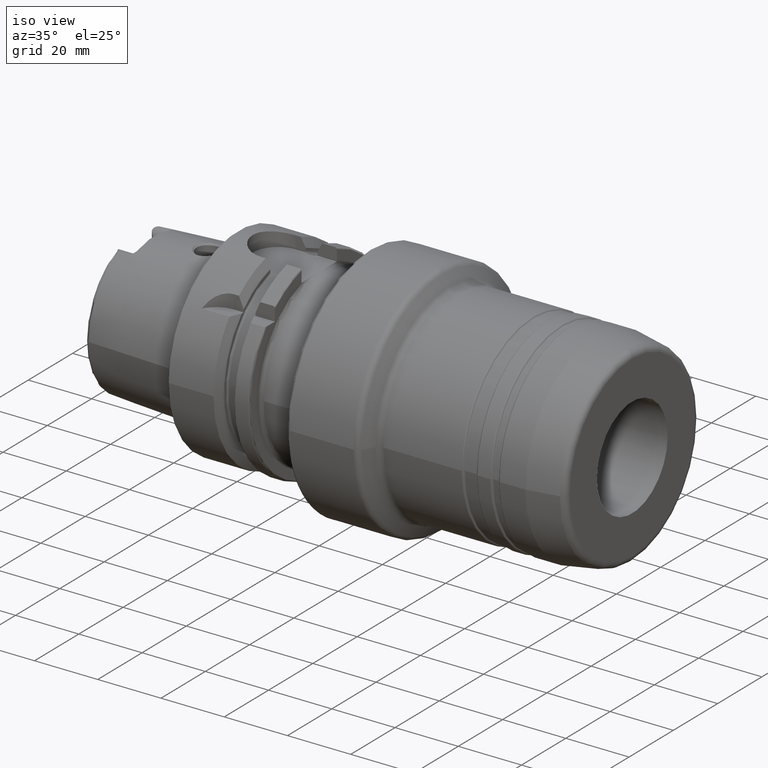
[diagram: clean part render]
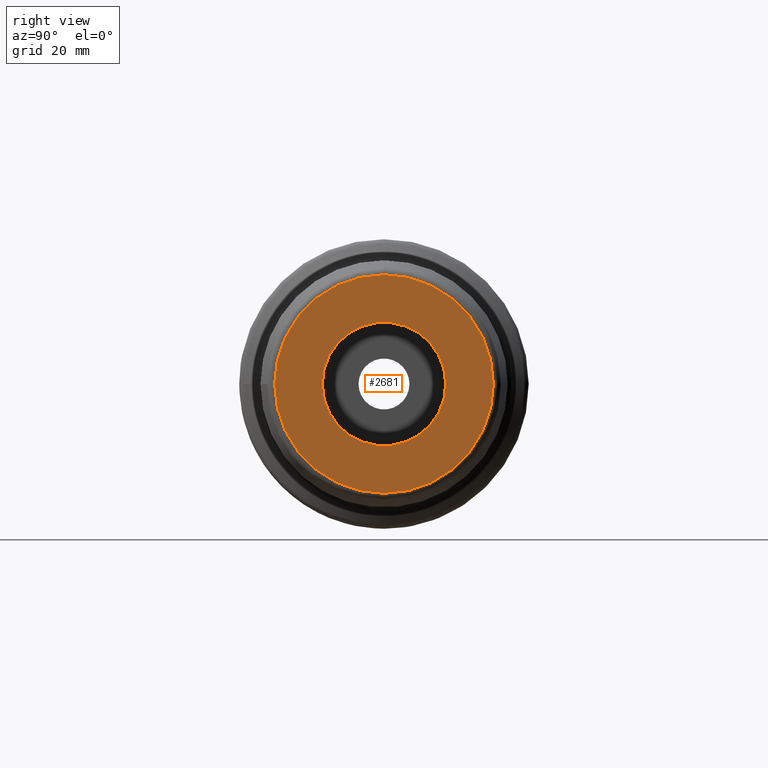
[diagram: tour spotlight — one face highlighted and labeled with its STEP entity id]
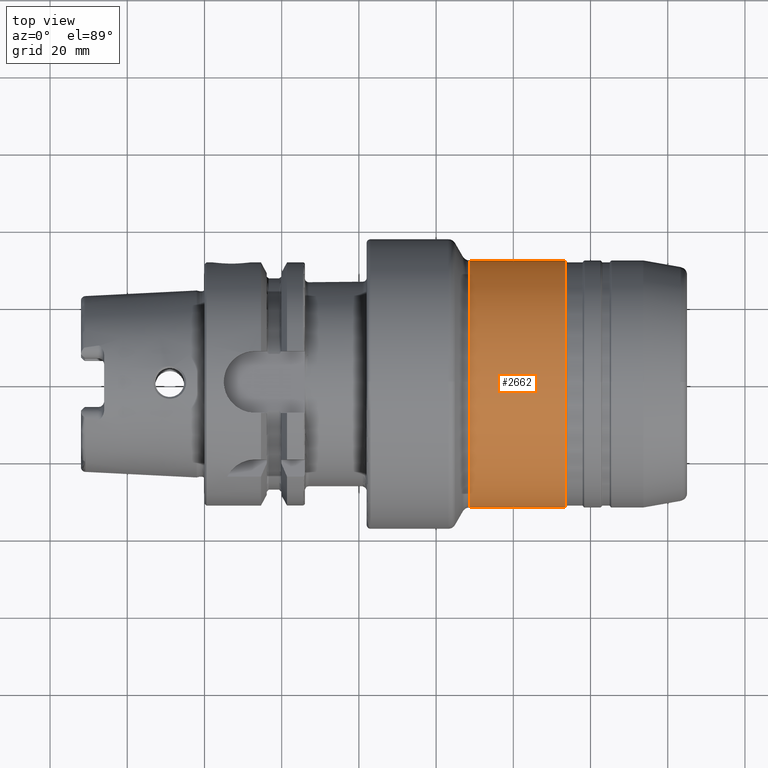
[diagram: tour spotlight — one face highlighted and labeled with its STEP entity id]
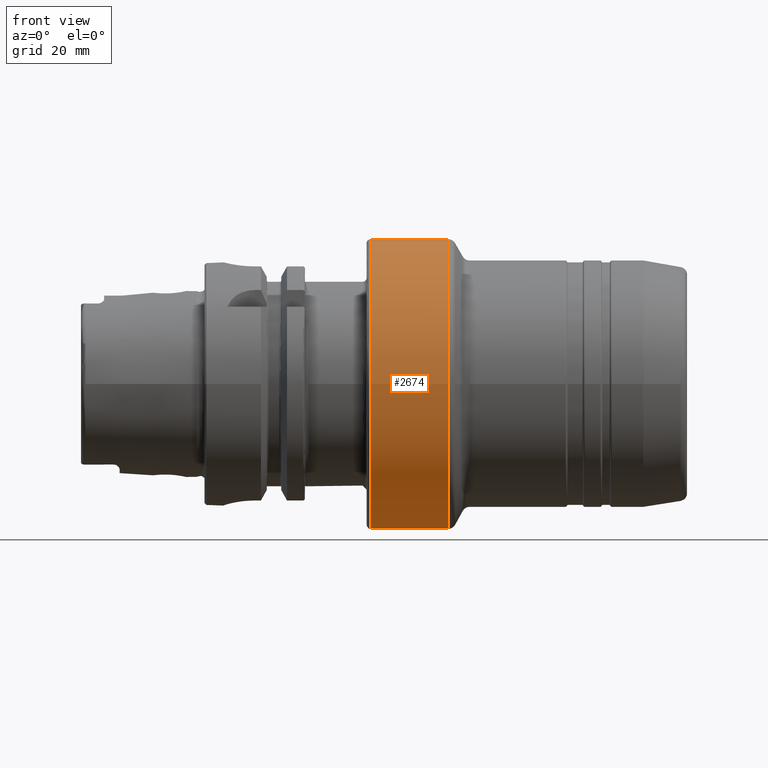
[diagram: tour spotlight — one face highlighted and labeled with its STEP entity id]
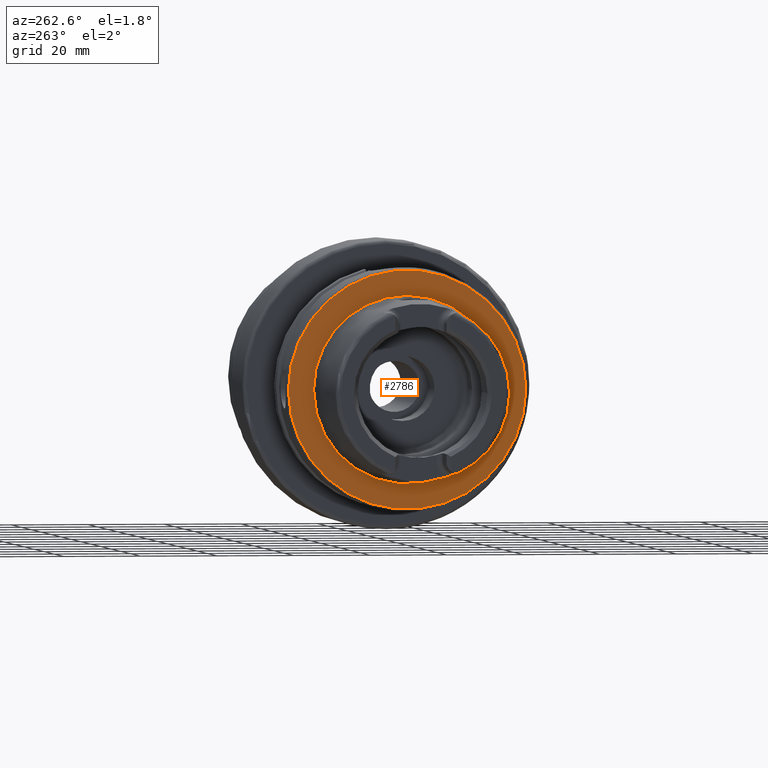
[diagram: tour spotlight — one face highlighted and labeled with its STEP entity id]
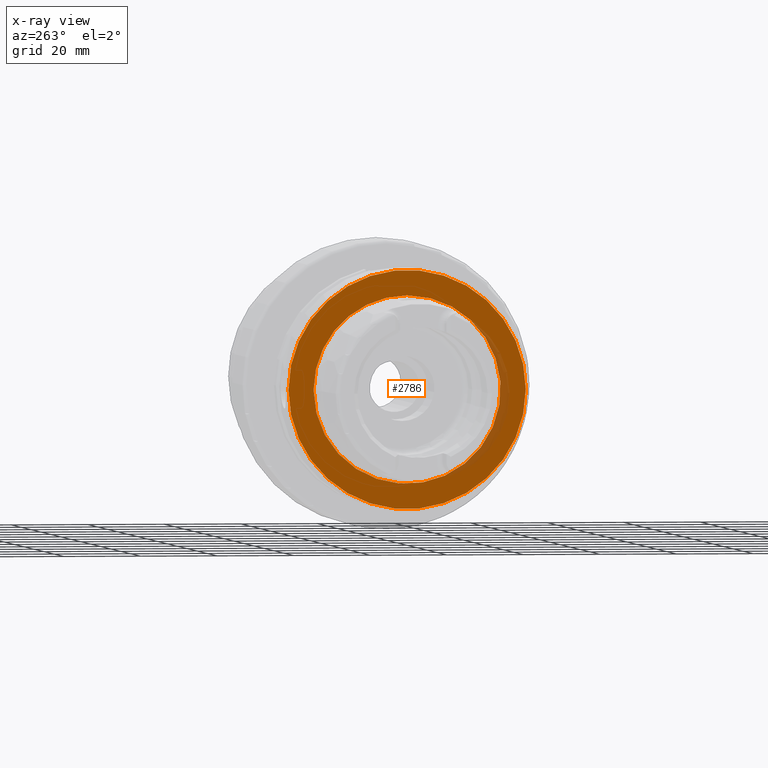
[diagram: x-ray of the same camera — body ghosted, this tour face saturated]
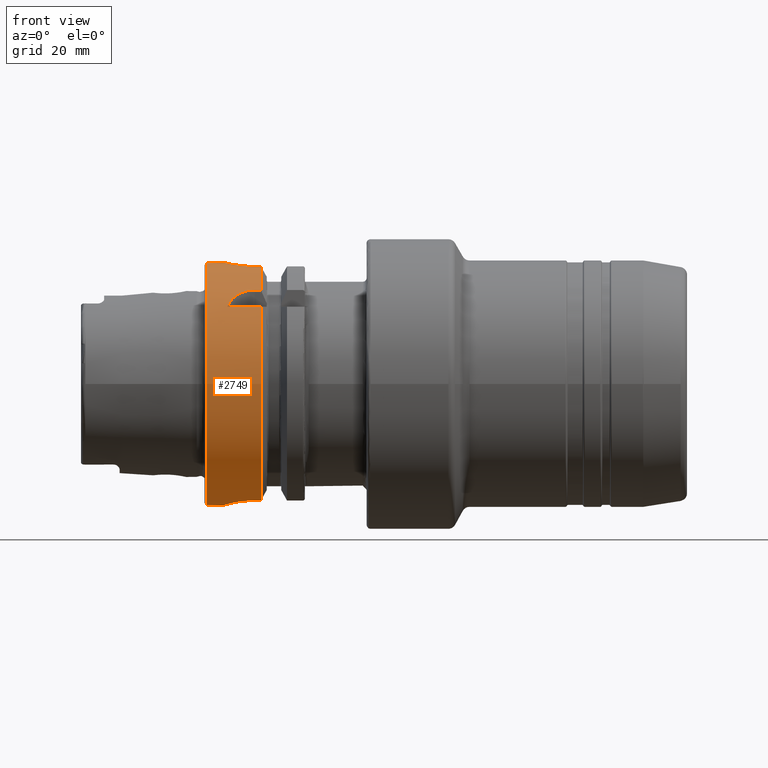
[diagram: tour spotlight — one face highlighted and labeled with its STEP entity id]
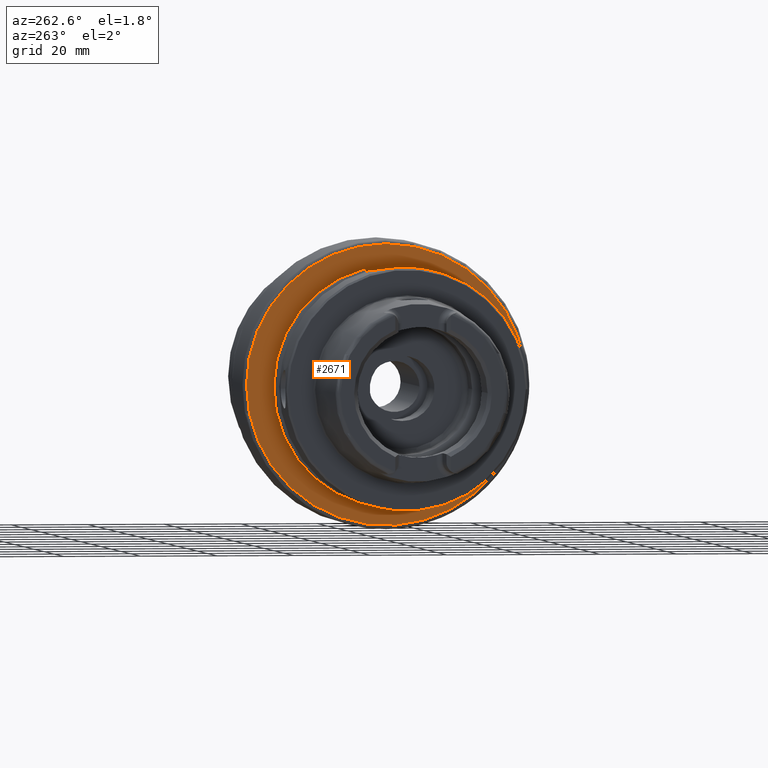
[diagram: tour spotlight — one face highlighted and labeled with its STEP entity id]
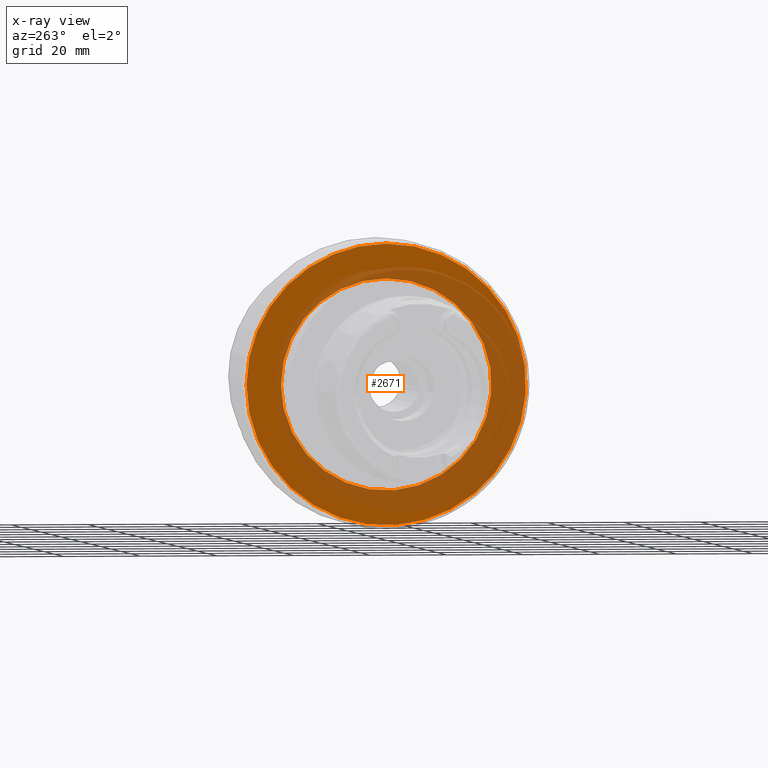
[diagram: x-ray of the same camera — body ghosted, this tour face saturated]
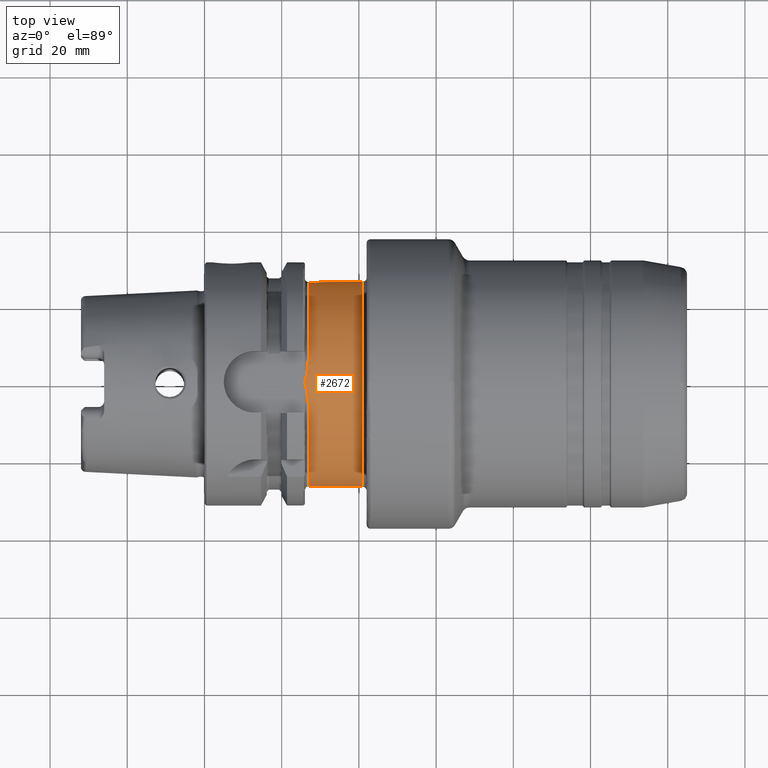
[diagram: tour spotlight — one face highlighted and labeled with its STEP entity id]
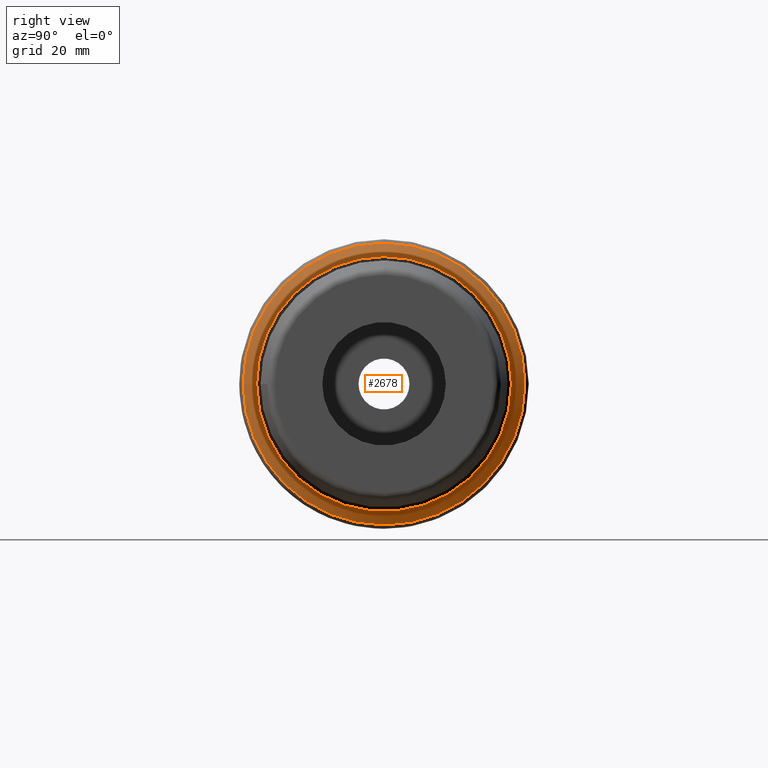
[diagram: tour spotlight — one face highlighted and labeled with its STEP entity id]
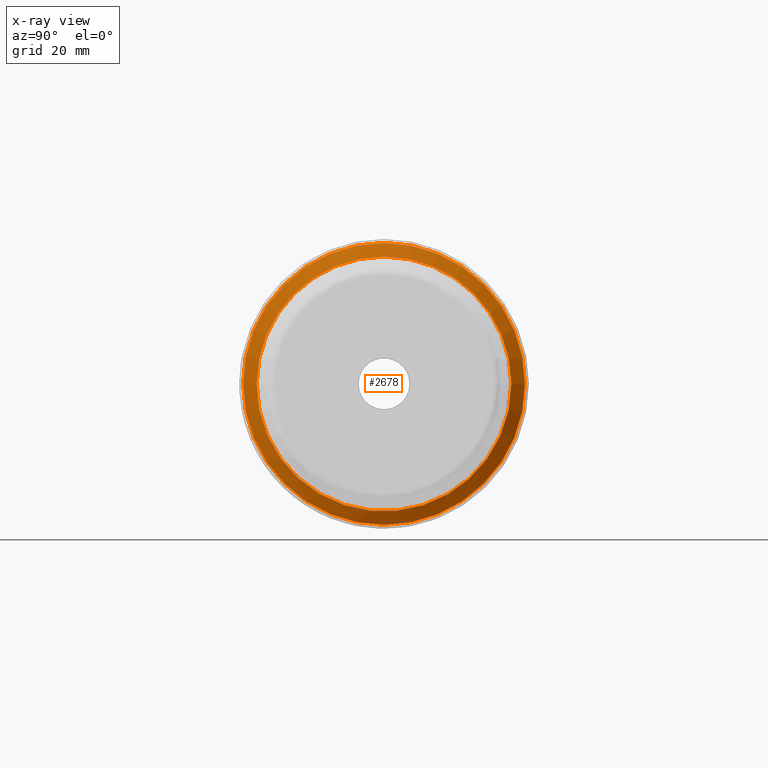
[diagram: x-ray of the same camera — body ghosted, this tour face saturated]
A machine part: a face-by-face anatomy tour. The part has 142 B-rep faces; the first image is the clean iso view, then the 8 largest visible faces are spotlighted one at a time (largest first), each with its STEP entity span.

Face 1 — right view, entity #2681. In plain terms, the highlighted planar face has unit normal (1, 0, 0).
Definition (entity closure, byte-faithful):
#38=FACE_BOUND('',#635,.T.);
#49=PLANE('',#2945);
#491=FACE_OUTER_BOUND('',#634,.T.);
#634=EDGE_LOOP('',(#1980,#1981));
#635=EDGE_LOOP('',(#1982,#1983));
#853=CIRCLE('',#2942,28.3218007376454);
#855=CIRCLE('',#2944,28.3218007376454);
#856=CIRCLE('',#2946,16.);
#857=CIRCLE('',#2947,16.);
#1082=VERTEX_POINT('',#4503);
#1083=VERTEX_POINT('',#4504);
#1084=VERTEX_POINT('',#4509);
#1085=VERTEX_POINT('',#4510);
#1419=EDGE_CURVE('',#1082,#1083,#853,.T.);
#1421=EDGE_CURVE('',#1083,#1082,#855,.T.);
#1422=EDGE_CURVE('',#1084,#1085,#856,.T.);
#1423=EDGE_CURVE('',#1085,#1084,#857,.T.);
#1980=ORIENTED_EDGE('',*,*,#1419,.F.);
#1981=ORIENTED_EDGE('',*,*,#1421,.F.);
#1982=ORIENTED_EDGE('',*,*,#1422,.F.);
#1983=ORIENTED_EDGE('',*,*,#1423,.F.);
#2681=ADVANCED_FACE('',(#491,#38),#49,.T.);
#2942=AXIS2_PLACEMENT_3D('',#4505,#3476,#3477);
#2944=AXIS2_PLACEMENT_3D('',#4507,#3480,#3481);
#2945=AXIS2_PLACEMENT_3D('',#4508,#3482,#3483);
#2946=AXIS2_PLACEMENT_3D('',#4511,#3484,#3485);
#2947=AXIS2_PLACEMENT_3D('',#4512,#3486,#3487);
#3476=DIRECTION('center_axis',(-1.,0.,0.));
#3477=DIRECTION('ref_axis',(0.,-1.,1.83697019872103E-16));
#3480=DIRECTION('center_axis',(-1.,0.,0.));
#3481=DIRECTION('ref_axis',(0.,-1.,1.83697019872103E-16));
#3482=DIRECTION('center_axis',(1.,0.,0.));
#3483=DIRECTION('ref_axis',(0.,0.,-1.));
#3484=DIRECTION('center_axis',(1.,0.,0.));
#3485=DIRECTION('ref_axis',(0.,0.,-1.));
#3486=DIRECTION('center_axis',(1.,0.,0.));
#3487=DIRECTION('ref_axis',(0.,0.,-1.));
#4503=CARTESIAN_POINT('',(125.,28.3218007376454,-8.67105065486166E-15));
#4504=CARTESIAN_POINT('',(125.,-3.46842026194466E-15,28.3218007376454));
#4505=CARTESIAN_POINT('Origin',(125.,0.,0.));
#4507=CARTESIAN_POINT('Origin',(125.,0.,0.));
#4508=CARTESIAN_POINT('Origin',(125.,16.,0.));
#4509=CARTESIAN_POINT('',(125.,16.,0.));
#4510=CARTESIAN_POINT('',(125.,-16.,-1.95943487863577E-15));
#4511=CARTESIAN_POINT('Origin',(125.,0.,0.));
#4512=CARTESIAN_POINT('Origin',(125.,0.,0.));

Face 2 — top view, entity #2662. In plain terms, the highlighted cylindrical surface (bore or boss wall) has radius 32 mm, axis along (1, 0, 0).
Definition (entity closure, byte-faithful):
#184=LINE('',#4193,#305);
#305=VECTOR('',#3345,32.);
#422=CYLINDRICAL_SURFACE('',#2883,32.);
#472=FACE_OUTER_BOUND('',#614,.T.);
#614=EDGE_LOOP('',(#1857,#1858,#1859,#1860,#1861,#1862,#1863,#1864));
#806=CIRCLE('',#2880,32.);
#807=CIRCLE('',#2881,32.);
#808=CIRCLE('',#2882,32.);
#809=CIRCLE('',#2884,32.);
#810=CIRCLE('',#2885,32.);
#811=CIRCLE('',#2886,32.);
#1033=VERTEX_POINT('',#4184);
#1034=VERTEX_POINT('',#4186);
#1035=VERTEX_POINT('',#4188);
#1036=VERTEX_POINT('',#4192);
#1037=VERTEX_POINT('',#4194);
#1038=VERTEX_POINT('',#4196);
#1353=EDGE_CURVE('',#1033,#1034,#806,.T.);
#1354=EDGE_CURVE('',#1034,#1035,#807,.T.);
#1355=EDGE_CURVE('',#1035,#1033,#808,.T.);
#1356=EDGE_CURVE('',#1034,#1036,#184,.T.);
#1357=EDGE_CURVE('',#1037,#1036,#809,.T.);
#1358=EDGE_CURVE('',#1038,#1037,#810,.T.);
#1359=EDGE_CURVE('',#1036,#1038,#811,.T.);
#1857=ORIENTED_EDGE('',*,*,#1355,.F.);
#1858=ORIENTED_EDGE('',*,*,#1354,.F.);
#1859=ORIENTED_EDGE('',*,*,#1356,.T.);
#1860=ORIENTED_EDGE('',*,*,#1357,.F.);
#1861=ORIENTED_EDGE('',*,*,#1358,.F.);
#1862=ORIENTED_EDGE('',*,*,#1359,.F.);
#1863=ORIENTED_EDGE('',*,*,#1356,.F.);
#1864=ORIENTED_EDGE('',*,*,#1353,.F.);
#2662=ADVANCED_FACE('',(#472),#422,.T.);
#2880=AXIS2_PLACEMENT_3D('',#4187,#3337,#3338);
#2881=AXIS2_PLACEMENT_3D('',#4189,#3339,#3340);
#2882=AXIS2_PLACEMENT_3D('',#4190,#3341,#3342);
#2883=AXIS2_PLACEMENT_3D('',#4191,#3343,#3344);
#2884=AXIS2_PLACEMENT_3D('',#4195,#3346,#3347);
#2885=AXIS2_PLACEMENT_3D('',#4197,#3348,#3349);
#2886=AXIS2_PLACEMENT_3D('',#4198,#3350,#3351);
#3337=DIRECTION('center_axis',(1.,0.,0.));
#3338=DIRECTION('ref_axis',(0.,-1.,1.83697019872103E-16));
#3339=DIRECTION('center_axis',(1.,0.,0.));
#3340=DIRECTION('ref_axis',(0.,-1.,1.83697019872103E-16));
#3341=DIRECTION('center_axis',(1.,0.,0.));
#3342=DIRECTION('ref_axis',(0.,-1.,1.83697019872103E-16));
#3343=DIRECTION('center_axis',(1.,0.,0.));
#3344=DIRECTION('ref_axis',(0.,1.,0.));
#3345=DIRECTION('',(-1.,0.,0.));
#3346=DIRECTION('center_axis',(-1.,0.,0.));
#3347=DIRECTION('ref_axis',(0.,-1.,1.83697019872103E-16));
#3348=DIRECTION('center_axis',(-1.,0.,0.));
#3349=DIRECTION('ref_axis',(0.,-1.,1.83697019872103E-16));
#3350=DIRECTION('center_axis',(-1.,0.,0.));
#3351=DIRECTION('ref_axis',(0.,-1.,1.83697019872103E-16));
#4184=CARTESIAN_POINT('',(93.4803847577293,-3.91886975727153E-15,32.));
#4186=CARTESIAN_POINT('',(93.4803847577293,-32.,-3.91886975727153E-15));
#4187=CARTESIAN_POINT('Origin',(93.4803847577293,0.,0.));
#4188=CARTESIAN_POINT('',(93.4803847577293,32.,-1.95943487863576E-15));
#4189=CARTESIAN_POINT('Origin',(93.4803847577293,0.,0.));
#4190=CARTESIAN_POINT('Origin',(93.4803847577293,0.,0.));
#4191=CARTESIAN_POINT('Origin',(80.6056624327026,0.,0.));
#4192=CARTESIAN_POINT('',(68.6547005383792,-32.,-3.91886975727153E-15));
#4193=CARTESIAN_POINT('',(80.6056624327026,-32.,-3.91886975727153E-15));
#4194=CARTESIAN_POINT('',(68.6547005383792,32.,-9.79717439317883E-15));
#4195=CARTESIAN_POINT('Origin',(68.6547005383792,0.,0.));
#4196=CARTESIAN_POINT('',(68.6547005383792,-3.91886975727153E-15,32.));
#4197=CARTESIAN_POINT('Origin',(68.6547005383792,0.,0.));
#4198=CARTESIAN_POINT('Origin',(68.6547005383792,0.,0.));

Face 3 — front view, entity #2674. In plain terms, the highlighted cylindrical surface (bore or boss wall) has radius 37.5 mm, axis along (1, 0, 0).
Definition (entity closure, byte-faithful):
#196=LINE('',#4466,#317);
#317=VECTOR('',#3429,37.5);
#424=CYLINDRICAL_SURFACE('',#2917,37.5);
#484=FACE_OUTER_BOUND('',#627,.T.);
#627=EDGE_LOOP('',(#1925,#1926,#1927,#1928,#1929,#1930,#1931,#1932));
#831=CIRCLE('',#2913,37.5);
#832=CIRCLE('',#2914,37.5);
#834=CIRCLE('',#2916,37.5);
#835=CIRCLE('',#2918,37.5);
#836=CIRCLE('',#2919,37.5);
#837=CIRCLE('',#2920,37.5);
#1064=VERTEX_POINT('',#4453);
#1065=VERTEX_POINT('',#4454);
#1066=VERTEX_POINT('',#4456);
#1067=VERTEX_POINT('',#4461);
#1068=VERTEX_POINT('',#4462);
#1069=VERTEX_POINT('',#4464);
#1394=EDGE_CURVE('',#1064,#1065,#831,.T.);
#1395=EDGE_CURVE('',#1065,#1066,#832,.T.);
#1397=EDGE_CURVE('',#1066,#1064,#834,.T.);
#1398=EDGE_CURVE('',#1067,#1068,#835,.T.);
#1399=EDGE_CURVE('',#1069,#1067,#836,.T.);
#1400=EDGE_CURVE('',#1069,#1065,#196,.T.);
#1401=EDGE_CURVE('',#1068,#1069,#837,.T.);
#1925=ORIENTED_EDGE('',*,*,#1398,.F.);
#1926=ORIENTED_EDGE('',*,*,#1399,.F.);
#1927=ORIENTED_EDGE('',*,*,#1400,.T.);
#1928=ORIENTED_EDGE('',*,*,#1394,.F.);
#1929=ORIENTED_EDGE('',*,*,#1397,.F.);
#1930=ORIENTED_EDGE('',*,*,#1395,.F.);
#1931=ORIENTED_EDGE('',*,*,#1400,.F.);
#1932=ORIENTED_EDGE('',*,*,#1401,.F.);
#2674=ADVANCED_FACE('',(#484),#424,.T.);
#2913=AXIS2_PLACEMENT_3D('',#4455,#3415,#3416);
#2914=AXIS2_PLACEMENT_3D('',#4457,#3417,#3418);
#2916=AXIS2_PLACEMENT_3D('',#4459,#3421,#3422);
#2917=AXIS2_PLACEMENT_3D('',#4460,#3423,#3424);
#2918=AXIS2_PLACEMENT_3D('',#4463,#3425,#3426);
#2919=AXIS2_PLACEMENT_3D('',#4465,#3427,#3428);
#2920=AXIS2_PLACEMENT_3D('',#4467,#3430,#3431);
#3415=DIRECTION('center_axis',(-1.,0.,0.));
#3416=DIRECTION('ref_axis',(0.,-1.,1.83697019872103E-16));
#3417=DIRECTION('center_axis',(-1.,0.,0.));
#3418=DIRECTION('ref_axis',(0.,-1.,1.83697019872103E-16));
#3421=DIRECTION('center_axis',(-1.,0.,0.));
#3422=DIRECTION('ref_axis',(0.,-1.,1.83697019872103E-16));
#3423=DIRECTION('center_axis',(1.,0.,0.));
#3424=DIRECTION('ref_axis',(0.,1.,0.));
#3425=DIRECTION('center_axis',(1.,0.,0.));
#3426=DIRECTION('ref_axis',(0.,-1.,1.83697019872103E-16));
#3427=DIRECTION('center_axis',(1.,0.,0.));
#3428=DIRECTION('ref_axis',(0.,-1.,1.83697019872103E-16));
#3429=DIRECTION('',(-1.,0.,0.));
#3430=DIRECTION('center_axis',(1.,0.,0.));
#3431=DIRECTION('ref_axis',(0.,-1.,1.83697019872103E-16));
#4453=CARTESIAN_POINT('',(43.,37.5,-1.14810637420064E-14));
#4454=CARTESIAN_POINT('',(43.,-37.5,-4.59242549680258E-15));
#4455=CARTESIAN_POINT('Origin',(43.,0.,0.));
#4456=CARTESIAN_POINT('',(43.,-4.59242549680258E-15,37.5));
#4457=CARTESIAN_POINT('Origin',(43.,0.,0.));
#4459=CARTESIAN_POINT('Origin',(43.,0.,0.));
#4460=CARTESIAN_POINT('Origin',(53.1622867597285,0.,0.));
#4461=CARTESIAN_POINT('',(63.1698729810778,37.5,-2.29621274840129E-15));
#4462=CARTESIAN_POINT('',(63.1698729810778,-4.59242549680258E-15,37.5));
#4463=CARTESIAN_POINT('Origin',(63.1698729810778,0.,0.));
#4464=CARTESIAN_POINT('',(63.1698729810778,-37.5,-4.59242549680258E-15));
#4465=CARTESIAN_POINT('Origin',(63.1698729810778,0.,0.));
#4466=CARTESIAN_POINT('',(53.1622867597285,-37.5,-4.59242549680258E-15));
#4467=CARTESIAN_POINT('Origin',(63.1698729810778,0.,0.));

Face 4 — auxiliary view, entity #2786. An x-ray twin of the same camera follows (body ghosted, this face saturated) — the face is partly hidden behind the body. In plain terms, the highlighted planar face has unit normal (-1, 0, 0).
Definition (entity closure, byte-faithful):
#46=FACE_BOUND('',#748,.T.);
#89=PLANE('',#3179);
#596=FACE_OUTER_BOUND('',#747,.T.);
#747=EDGE_LOOP('',(#2599,#2600));
#748=EDGE_LOOP('',(#2601,#2602));
#981=CIRCLE('',#3177,24.4331325271027);
#982=CIRCLE('',#3178,24.4331325271027);
#983=CIRCLE('',#3180,31.);
#984=CIRCLE('',#3181,31.);
#1285=VERTEX_POINT('',#5949);
#1286=VERTEX_POINT('',#5951);
#1287=VERTEX_POINT('',#5955);
#1288=VERTEX_POINT('',#5956);
#1724=EDGE_CURVE('',#1286,#1285,#981,.T.);
#1725=EDGE_CURVE('',#1285,#1286,#982,.T.);
#1726=EDGE_CURVE('',#1287,#1288,#983,.T.);
#1727=EDGE_CURVE('',#1288,#1287,#984,.T.);
#2599=ORIENTED_EDGE('',*,*,#1726,.F.);
#2600=ORIENTED_EDGE('',*,*,#1727,.F.);
#2601=ORIENTED_EDGE('',*,*,#1724,.T.);
#2602=ORIENTED_EDGE('',*,*,#1725,.T.);
#2786=ADVANCED_FACE('',(#596,#46),#89,.T.);
#3177=AXIS2_PLACEMENT_3D('',#5952,#4043,#4044);
#3178=AXIS2_PLACEMENT_3D('',#5953,#4045,#4046);
#3179=AXIS2_PLACEMENT_3D('',#5954,#4047,#4048);
#3180=AXIS2_PLACEMENT_3D('',#5957,#4049,#4050);
#3181=AXIS2_PLACEMENT_3D('',#5958,#4051,#4052);
#4043=DIRECTION('center_axis',(1.,0.,0.));
#4044=DIRECTION('ref_axis',(0.,0.,-1.));
#4045=DIRECTION('center_axis',(1.,0.,0.));
#4046=DIRECTION('ref_axis',(0.,0.,-1.));
#4047=DIRECTION('center_axis',(-1.,0.,0.));
#4048=DIRECTION('ref_axis',(0.,0.,1.));
#4049=DIRECTION('center_axis',(1.,0.,0.));
#4050=DIRECTION('ref_axis',(0.,0.,-1.));
#4051=DIRECTION('center_axis',(1.,0.,0.));
#4052=DIRECTION('ref_axis',(0.,0.,-1.));
#5949=CARTESIAN_POINT('',(0.,-2.99219575424594E-15,24.4331325271027));
#5951=CARTESIAN_POINT('',(0.,24.4331325271027,0.));
#5952=CARTESIAN_POINT('Origin',(0.,0.,0.));
#5953=CARTESIAN_POINT('Origin',(0.,0.,0.));
#5954=CARTESIAN_POINT('Origin',(0.,31.,0.));
#5955=CARTESIAN_POINT('',(0.,31.,0.));
#5956=CARTESIAN_POINT('',(-1.04083408558608E-15,-31.,-3.7964050773568E-15));
#5957=CARTESIAN_POINT('Origin',(0.,0.,0.));
#5958=CARTESIAN_POINT('Origin',(0.,0.,0.));

Face 5 — front view, entity #2749. In plain terms, the highlighted cylindrical surface (bore or boss wall) has radius 31.5 mm, axis along (1, 0, 0).
Definition (entity closure, byte-faithful):
#43=FACE_BOUND('',#708,.T.);
#119=B_SPLINE_CURVE_WITH_KNOTS('',3,(#5265,#5266,#5267,#5268,#5269,#5270,
#5271,#5272,#5273,#5274,#5275,#5276,#5277,#5278,#5279,#5280,#5281,#5282,
#5283,#5284,#5285,#5286,#5287,#5288,#5289,#5290),.UNSPECIFIED.,.F.,.F.,
(4,2,2,2,2,2,2,2,2,2,2,2,4),(0.,0.188688694287611,0.377377388575223,0.56606194688798,
0.754746505200737,0.943431063513494,1.13211562182625,1.32080431611386,1.50949301040147,
1.69818170468909,1.8868703989767,2.07555495728945,2.26423951560221),
 .UNSPECIFIED.);
#120=B_SPLINE_CURVE_WITH_KNOTS('',3,(#5291,#5292,#5293,#5294,#5295,#5296,
#5297,#5298,#5299,#5300),.UNSPECIFIED.,.F.,.F.,(4,2,2,2,4),(2.26423951560221,
2.45292407391497,2.64160863222772,2.83029732651534,3.01898602080295),
 .UNSPECIFIED.);
#123=B_SPLINE_CURVE_WITH_KNOTS('',3,(#5356,#5357,#5358,#5359,#5360,#5361,
#5362,#5363,#5364,#5365,#5366,#5367),.UNSPECIFIED.,.F.,.F.,(4,2,2,2,2,4),
(1.1085154204615,1.31979218709236,1.52798350480179,1.73617482251122,1.90421770126337,
2.07226058001552),.UNSPECIFIED.);
#133=B_SPLINE_CURVE_WITH_KNOTS('',3,(#5536,#5537,#5538,#5539,#5540,#5541,
#5542,#5543,#5544,#5545),.UNSPECIFIED.,.F.,.F.,(4,2,2,2,4),(0.,0.30293011231322,
0.605860224626439,0.90976031392917,1.2136604032319),.UNSPECIFIED.);
#134=B_SPLINE_CURVE_WITH_KNOTS('',3,(#5554,#5555,#5556,#5557,#5558,#5559,
#5560,#5561,#5562,#5563),.UNSPECIFIED.,.F.,.F.,(4,2,2,2,4),(1.20927420824097,
1.5131742975437,1.81707438684643,2.12000449915965,2.42293461147287),
 .UNSPECIFIED.);
#146=B_SPLINE_CURVE_WITH_KNOTS('',3,(#5724,#5725,#5726,#5727,#5728,#5729,
#5730,#5731,#5732,#5733,#5734,#5735,#5736,#5737,#5738,#5739,#5740,#5741),
 .UNSPECIFIED.,.F.,.F.,(4,2,2,2,2,2,2,2,4),(0.,0.302805879979318,0.605611759958635,
0.908372461246501,1.21113316253437,1.51389386382223,1.8166545651101,2.11946044508942,
2.42226632506874),.UNSPECIFIED.);
#237=LINE('',#5331,#358);
#242=LINE('',#5376,#363);
#262=LINE('',#5570,#383);
#263=LINE('',#5573,#384);
#272=LINE('',#5718,#393);
#274=LINE('',#5746,#395);
#278=LINE('',#5756,#399);
#358=VECTOR('',#3678,10.);
#363=VECTOR('',#3689,10.);
#383=VECTOR('',#3761,10.);
#384=VECTOR('',#3764,10.);
#393=VECTOR('',#3831,10.);
#395=VECTOR('',#3839,10.);
#399=VECTOR('',#3853,31.5);
#443=CYLINDRICAL_SURFACE('',#3089,31.5);
#559=FACE_OUTER_BOUND('',#707,.T.);
#707=EDGE_LOOP('',(#2382,#2383,#2384,#2385,#2386,#2387,#2388,#2389,#2390,
#2391,#2392,#2393,#2394,#2395,#2396,#2397,#2398,#2399,#2400));
#708=EDGE_LOOP('',(#2401,#2402));
#906=CIRCLE('',#3032,31.5);
#907=CIRCLE('',#3033,31.5);
#915=CIRCLE('',#3050,31.5);
#916=CIRCLE('',#3055,31.5);
#930=CIRCLE('',#3090,31.5);
#931=CIRCLE('',#3091,31.5);
#932=CIRCLE('',#3092,31.5);
#1172=VERTEX_POINT('',#5262);
#1173=VERTEX_POINT('',#5264);
#1181=VERTEX_POINT('',#5328);
#1182=VERTEX_POINT('',#5330);
#1186=VERTEX_POINT('',#5355);
#1188=VERTEX_POINT('',#5372);
#1193=VERTEX_POINT('',#5388);
#1194=VERTEX_POINT('',#5390);
#1219=VERTEX_POINT('',#5534);
#1220=VERTEX_POINT('',#5535);
#1221=VERTEX_POINT('',#5549);
#1222=VERTEX_POINT('',#5553);
#1223=VERTEX_POINT('',#5572);
#1226=VERTEX_POINT('',#5585);
#1242=VERTEX_POINT('',#5715);
#1243=VERTEX_POINT('',#5717);
#1244=VERTEX_POINT('',#5723);
#1246=VERTEX_POINT('',#5755);
#1247=VERTEX_POINT('',#5757);
#1536=EDGE_CURVE('',#1173,#1172,#119,.T.);
#1537=EDGE_CURVE('',#1172,#1173,#120,.T.);
#1546=EDGE_CURVE('',#1182,#1181,#237,.T.);
#1552=EDGE_CURVE('',#1181,#1186,#123,.T.);
#1556=EDGE_CURVE('',#1186,#1188,#242,.T.);
#1562=EDGE_CURVE('',#1182,#1193,#906,.T.);
#1563=EDGE_CURVE('',#1193,#1194,#907,.T.);
#1597=EDGE_CURVE('',#1219,#1220,#133,.T.);
#1600=EDGE_CURVE('',#1220,#1221,#915,.T.);
#1602=EDGE_CURVE('',#1221,#1222,#134,.T.);
#1605=EDGE_CURVE('',#1222,#1194,#262,.T.);
#1606=EDGE_CURVE('',#1223,#1219,#263,.T.);
#1610=EDGE_CURVE('',#1223,#1226,#916,.T.);
#1641=EDGE_CURVE('',#1243,#1242,#272,.T.);
#1643=EDGE_CURVE('',#1242,#1244,#146,.T.);
#1646=EDGE_CURVE('',#1244,#1226,#274,.T.);
#1650=EDGE_CURVE('',#1243,#1188,#930,.T.);
#1651=EDGE_CURVE('',#1193,#1246,#278,.T.);
#1652=EDGE_CURVE('',#1246,#1247,#931,.T.);
#1653=EDGE_CURVE('',#1247,#1246,#932,.T.);
#2382=ORIENTED_EDGE('',*,*,#1556,.T.);
#2383=ORIENTED_EDGE('',*,*,#1650,.F.);
#2384=ORIENTED_EDGE('',*,*,#1641,.T.);
#2385=ORIENTED_EDGE('',*,*,#1643,.T.);
#2386=ORIENTED_EDGE('',*,*,#1646,.T.);
#2387=ORIENTED_EDGE('',*,*,#1610,.F.);
#2388=ORIENTED_EDGE('',*,*,#1606,.T.);
#2389=ORIENTED_EDGE('',*,*,#1597,.T.);
#2390=ORIENTED_EDGE('',*,*,#1600,.T.);
#2391=ORIENTED_EDGE('',*,*,#1602,.T.);
#2392=ORIENTED_EDGE('',*,*,#1605,.T.);
#2393=ORIENTED_EDGE('',*,*,#1563,.F.);
#2394=ORIENTED_EDGE('',*,*,#1651,.T.);
#2395=ORIENTED_EDGE('',*,*,#1652,.T.);
#2396=ORIENTED_EDGE('',*,*,#1653,.T.);
#2397=ORIENTED_EDGE('',*,*,#1651,.F.);
#2398=ORIENTED_EDGE('',*,*,#1562,.F.);
#2399=ORIENTED_EDGE('',*,*,#1546,.T.);
#2400=ORIENTED_EDGE('',*,*,#1552,.T.);
#2401=ORIENTED_EDGE('',*,*,#1536,.T.);
#2402=ORIENTED_EDGE('',*,*,#1537,.T.);
#2749=ADVANCED_FACE('',(#559,#43),#443,.T.);
#3032=AXIS2_PLACEMENT_3D('',#5389,#3702,#3703);
#3033=AXIS2_PLACEMENT_3D('',#5391,#3704,#3705);
#3050=AXIS2_PLACEMENT_3D('',#5550,#3753,#3754);
#3055=AXIS2_PLACEMENT_3D('',#5586,#3768,#3769);
#3089=AXIS2_PLACEMENT_3D('',#5753,#3849,#3850);
#3090=AXIS2_PLACEMENT_3D('',#5754,#3851,#3852);
#3091=AXIS2_PLACEMENT_3D('',#5758,#3854,#3855);
#3092=AXIS2_PLACEMENT_3D('',#5759,#3856,#3857);
#3678=DIRECTION('',(-1.,0.,0.));
#3689=DIRECTION('',(1.,0.,0.));
#3702=DIRECTION('center_axis',(1.,0.,0.));
#3703=DIRECTION('ref_axis',(0.,0.,-1.));
#3704=DIRECTION('center_axis',(1.,0.,0.));
#3705=DIRECTION('ref_axis',(0.,0.,-1.));
#3753=DIRECTION('center_axis',(-1.,0.,0.));
#3754=DIRECTION('ref_axis',(0.,1.,0.));
#3761=DIRECTION('',(1.,0.,0.));
#3764=DIRECTION('',(-1.,0.,0.));
#3768=DIRECTION('center_axis',(1.,0.,0.));
#3769=DIRECTION('ref_axis',(0.,0.,-1.));
#3831=DIRECTION('',(-1.,0.,0.));
#3839=DIRECTION('',(1.,0.,0.));
#3849=DIRECTION('center_axis',(1.,0.,0.));
#3850=DIRECTION('ref_axis',(0.,1.,0.));
#3851=DIRECTION('center_axis',(1.,0.,0.));
#3852=DIRECTION('ref_axis',(0.,0.,-1.));
#3853=DIRECTION('',(-1.,0.,0.));
#3854=DIRECTION('center_axis',(1.,0.,0.));
#3855=DIRECTION('ref_axis',(0.,0.,-1.));
#3856=DIRECTION('center_axis',(1.,0.,0.));
#3857=DIRECTION('ref_axis',(0.,0.,-1.));
#5262=CARTESIAN_POINT('',(12.,31.5,-6.12323399573677E-16));
#5264=CARTESIAN_POINT('',(7.,31.100643080168,5.));
#5265=CARTESIAN_POINT('Ctrl Pts',(7.,31.100643080168,5.));
#5266=CARTESIAN_POINT('Ctrl Pts',(6.37103768570796,31.100643080168,5.));
#5267=CARTESIAN_POINT('Ctrl Pts',(5.70089281579202,31.1216953112949,4.87408354368814));
#5268=CARTESIAN_POINT('Ctrl Pts',(4.46931934300962,31.1973810209855,4.36348784122736));
#5269=CARTESIAN_POINT('Ctrl Pts',(3.90779781350673,31.2508828501623,3.97886562537221));
#5270=CARTESIAN_POINT('Ctrl Pts',(3.021144092268,31.3510329557602,3.09221190413348));
#5271=CARTESIAN_POINT('Ctrl Pts',(2.63651425348544,31.4042391414288,2.5306861925578));
#5272=CARTESIAN_POINT('Ctrl Pts',(2.12591301120586,31.4792463697936,1.29909839144709));
#5273=CARTESIAN_POINT('Ctrl Pts',(2.,31.5,0.62894852770919));
#5274=CARTESIAN_POINT('Ctrl Pts',(2.,31.5,-0.62894852770919));
#5275=CARTESIAN_POINT('Ctrl Pts',(2.12591301120586,31.4792463697936,-1.29909839144709));
#5276=CARTESIAN_POINT('Ctrl Pts',(2.63651425348544,31.4042391414288,-2.5306861925578));
#5277=CARTESIAN_POINT('Ctrl Pts',(3.021144092268,31.3510329557602,-3.09221190413348));
#5278=CARTESIAN_POINT('Ctrl Pts',(3.90779781350673,31.2508828501623,-3.97886562537221));
#5279=CARTESIAN_POINT('Ctrl Pts',(4.46931934300962,31.1973810209855,-4.36348784122736));
#5280=CARTESIAN_POINT('Ctrl Pts',(5.70089281579202,31.1216953112949,-4.87408354368814));
#5281=CARTESIAN_POINT('Ctrl Pts',(6.37103768570796,31.100643080168,-5.));
#5282=CARTESIAN_POINT('Ctrl Pts',(7.62896231429203,31.100643080168,-5.));
#5283=CARTESIAN_POINT('Ctrl Pts',(8.29910718420797,31.1216953112949,-4.87408354368814));
#5284=CARTESIAN_POINT('Ctrl Pts',(9.53068065699038,31.1973810209855,-4.36348784122736));
#5285=CARTESIAN_POINT('Ctrl Pts',(10.0922021864933,31.2508828501623,-3.97886562537221));
#5286=CARTESIAN_POINT('Ctrl Pts',(10.978855907732,31.3510329557602,-3.09221190413348));
#5287=CARTESIAN_POINT('Ctrl Pts',(11.3634857465146,31.4042391414288,-2.5306861925578));
#5288=CARTESIAN_POINT('Ctrl Pts',(11.8740869887941,31.4792463697936,-1.29909839144709));
#5289=CARTESIAN_POINT('Ctrl Pts',(12.,31.5,-0.628948527709191));
#5290=CARTESIAN_POINT('Ctrl Pts',(12.,31.5,-5.55111512312578E-16));
#5291=CARTESIAN_POINT('Ctrl Pts',(12.,31.5,-1.38777878078145E-16));
#5292=CARTESIAN_POINT('Ctrl Pts',(12.,31.5,0.628948527709191));
#5293=CARTESIAN_POINT('Ctrl Pts',(11.8740869887941,31.4792463697936,1.29909839144709));
#5294=CARTESIAN_POINT('Ctrl Pts',(11.3634857465146,31.4042391414288,2.5306861925578));
#5295=CARTESIAN_POINT('Ctrl Pts',(10.978855907732,31.3510329557602,3.09221190413348));
#5296=CARTESIAN_POINT('Ctrl Pts',(10.0922021864933,31.2508828501623,3.97886562537221));
#5297=CARTESIAN_POINT('Ctrl Pts',(9.53068065699038,31.1973810209855,4.36348784122736));
#5298=CARTESIAN_POINT('Ctrl Pts',(8.29910718420797,31.1216953112949,4.87408354368813));
#5299=CARTESIAN_POINT('Ctrl Pts',(7.62896231429203,31.100643080168,5.));
#5300=CARTESIAN_POINT('Ctrl Pts',(6.99999999999999,31.100643080168,5.));
#5328=CARTESIAN_POINT('',(5.88828609634419,-24.3361870472759,20.));
#5330=CARTESIAN_POINT('',(14.6225009252407,-24.3361870472759,20.));
#5331=CARTESIAN_POINT('',(7.56125046262034,-24.3361870472759,20.));
#5355=CARTESIAN_POINT('',(13.,-20.,24.3361870472759));
#5356=CARTESIAN_POINT('Ctrl Pts',(5.88828609634419,-24.3361870472759,20.));
#5357=CARTESIAN_POINT('Ctrl Pts',(6.11069532820048,-23.9044753723342,20.5253108035937));
#5358=CARTESIAN_POINT('Ctrl Pts',(6.38325999044306,-23.4713523250807,21.0173865932788));
#5359=CARTESIAN_POINT('Ctrl Pts',(7.044898076458,-22.6317364276543,21.9186738868096));
#5360=CARTESIAN_POINT('Ctrl Pts',(7.46714468561685,-22.1861072682036,22.3682920878559));
#5361=CARTESIAN_POINT('Ctrl Pts',(8.46725531403812,-21.3767026700071,23.143042657319));
#5362=CARTESIAN_POINT('Ctrl Pts',(9.04646427720221,-21.0147449478223,23.4683362269255));
#5363=CARTESIAN_POINT('Ctrl Pts',(10.1145001432702,-20.5200081116516,23.9011603796022));
#5364=CARTESIAN_POINT('Ctrl Pts',(10.670823971716,-20.3234249831704,24.0673462447194));
#5365=CARTESIAN_POINT('Ctrl Pts',(11.8334528721306,-20.063121855676,24.2847667849476));
#5366=CARTESIAN_POINT('Ctrl Pts',(12.4398570708262,-20.,24.3361870472759));
#5367=CARTESIAN_POINT('Ctrl Pts',(13.,-20.,24.3361870472759));
#5372=CARTESIAN_POINT('',(14.6225009252407,-20.,24.3361870472759));
#5376=CARTESIAN_POINT('',(7.56125046262035,-20.,24.3361870472759));
#5388=CARTESIAN_POINT('',(14.6225009252407,-31.5,-3.85763741731416E-15));
#5389=CARTESIAN_POINT('Origin',(14.6225009252407,0.,0.));
#5390=CARTESIAN_POINT('',(14.6225009252407,-9.,-30.1869176962472));
#5391=CARTESIAN_POINT('Origin',(14.6225009252407,0.,0.));
#5534=CARTESIAN_POINT('',(13.,9.00000000000001,-30.1869176962472));
#5535=CARTESIAN_POINT('',(5.,1.,-31.4841229828623));
#5536=CARTESIAN_POINT('Ctrl Pts',(13.,9.00000000000001,-30.1869176962472));
#5537=CARTESIAN_POINT('Ctrl Pts',(11.9902329589559,9.00000000000001,-30.1869176962472));
#5538=CARTESIAN_POINT('Ctrl Pts',(10.9171740660538,8.79719825889175,-30.2496070227108));
#5539=CARTESIAN_POINT('Ctrl Pts',(8.9496642215883,7.98063403850822,-30.4752177477269));
#5540=CARTESIAN_POINT('Ctrl Pts',(8.05472493283182,7.3671500962837,-30.6348764237341));
#5541=CARTESIAN_POINT('Ctrl Pts',(6.63955745341061,5.95454409907419,-30.9405445582004));
#5542=CARTESIAN_POINT('Ctrl Pts',(6.02370102555041,5.0583660804473,-31.1070804719497));
#5543=CARTESIAN_POINT('Ctrl Pts',(5.2037733306458,3.08756640398172,-31.3640631381934));
#5544=CARTESIAN_POINT('Ctrl Pts',(5.,2.01248971281588,-31.4519642432536));
#5545=CARTESIAN_POINT('Ctrl Pts',(5.,1.00000000000001,-31.4841229828623));
#5549=CARTESIAN_POINT('',(5.,-0.999999999999999,-31.4841229828623));
#5550=CARTESIAN_POINT('Origin',(5.,0.,0.));
#5553=CARTESIAN_POINT('',(13.,-9.,-30.1869176962472));
#5554=CARTESIAN_POINT('Ctrl Pts',(5.,-0.999999999999997,-31.4841229828623));
#5555=CARTESIAN_POINT('Ctrl Pts',(5.,-2.01248971281587,-31.4519642432536));
#5556=CARTESIAN_POINT('Ctrl Pts',(5.2037733306458,-3.08756640398171,-31.3640631381934));
#5557=CARTESIAN_POINT('Ctrl Pts',(6.02370102555041,-5.05836608044729,-31.1070804719497));
#5558=CARTESIAN_POINT('Ctrl Pts',(6.63955745341061,-5.95454409907418,-30.9405445582004));
#5559=CARTESIAN_POINT('Ctrl Pts',(8.05472493283182,-7.36715009628369,-30.6348764237341));
#5560=CARTESIAN_POINT('Ctrl Pts',(8.9496642215883,-7.98063403850821,-30.4752177477269));
#5561=CARTESIAN_POINT('Ctrl Pts',(10.9171740660538,-8.79719825889174,-30.2496070227108));
#5562=CARTESIAN_POINT('Ctrl Pts',(11.9902329589559,-9.,-30.1869176962472));
#5563=CARTESIAN_POINT('Ctrl Pts',(13.,-9.,-30.1869176962472));
#5570=CARTESIAN_POINT('',(7.56125046262035,-8.99999999999999,-30.1869176962472));
#5572=CARTESIAN_POINT('',(14.6225009252407,9.,-30.1869176962472));
#5573=CARTESIAN_POINT('',(7.56125046262034,9.00000000000001,-30.1869176962472));
#5585=CARTESIAN_POINT('',(14.6225009252407,8.,30.4671954731642));
#5586=CARTESIAN_POINT('Origin',(14.6225009252407,0.,0.));
#5715=CARTESIAN_POINT('',(13.,-8.,30.4671954731642));
#5717=CARTESIAN_POINT('',(14.6225009252407,-8.,30.4671954731642));
#5718=CARTESIAN_POINT('',(7.56125046262034,-8.,30.4671954731642));
#5723=CARTESIAN_POINT('',(13.,8.,30.4671954731642));
#5724=CARTESIAN_POINT('Ctrl Pts',(13.,-8.,30.4671954731643));
#5725=CARTESIAN_POINT('Ctrl Pts',(11.9906470667356,-8.,30.4671954731643));
#5726=CARTESIAN_POINT('Ctrl Pts',(10.9172075930168,-7.79737202490167,30.5225803085525));
#5727=CARTESIAN_POINT('Ctrl Pts',(8.94758399331801,-6.97961067526075,30.719895002943));
#5728=CARTESIAN_POINT('Ctrl Pts',(8.05099322370438,-6.36470172268915,30.8586830127239));
#5729=CARTESIAN_POINT('Ctrl Pts',(6.63540388828045,-4.94911238726521,31.1170994373341));
#5730=CARTESIAN_POINT('Ctrl Pts',(6.02041263015313,-4.05247770930662,31.2539072689014));
#5731=CARTESIAN_POINT('Ctrl Pts',(5.20259114887399,-2.08269813865027,31.4466478906396));
#5732=CARTESIAN_POINT('Ctrl Pts',(5.,-1.00920233762622,31.5));
#5733=CARTESIAN_POINT('Ctrl Pts',(5.,1.00920233762622,31.5));
#5734=CARTESIAN_POINT('Ctrl Pts',(5.20259114887399,2.08269813865027,31.4466478906396));
#5735=CARTESIAN_POINT('Ctrl Pts',(6.02041263015313,4.05247770930662,31.2539072689014));
#5736=CARTESIAN_POINT('Ctrl Pts',(6.63540388828045,4.94911238726521,31.1170994373341));
#5737=CARTESIAN_POINT('Ctrl Pts',(8.05099322370439,6.36470172268915,30.8586830127239));
#5738=CARTESIAN_POINT('Ctrl Pts',(8.94758399331801,6.97961067526075,30.719895002943));
#5739=CARTESIAN_POINT('Ctrl Pts',(10.9172075930168,7.79737202490167,30.5225803085525));
#5740=CARTESIAN_POINT('Ctrl Pts',(11.9906470667356,8.,30.4671954731643));
#5741=CARTESIAN_POINT('Ctrl Pts',(13.,8.,30.4671954731643));
#5746=CARTESIAN_POINT('',(7.56125046262035,8.,30.4671954731642));
#5753=CARTESIAN_POINT('Origin',(7.56125046262034,0.,0.));
#5754=CARTESIAN_POINT('Origin',(14.6225009252407,0.,0.));
#5755=CARTESIAN_POINT('',(0.5,-31.5,-3.85763741731416E-15));
#5756=CARTESIAN_POINT('',(7.56125046262034,-31.5,-3.85763741731416E-15));
#5757=CARTESIAN_POINT('',(0.5,31.5,0.));
#5758=CARTESIAN_POINT('Origin',(0.5,0.,0.));
#5759=CARTESIAN_POINT('Origin',(0.5,0.,0.));

Face 6 — auxiliary view, entity #2671. An x-ray twin of the same camera follows (body ghosted, this face saturated) — the face is partly hidden behind the body. In plain terms, the highlighted planar face has unit normal (-1, 0, 0).
Definition (entity closure, byte-faithful):
#37=FACE_BOUND('',#624,.T.);
#48=PLANE('',#2908);
#481=FACE_OUTER_BOUND('',#623,.T.);
#623=EDGE_LOOP('',(#1902,#1903));
#624=EDGE_LOOP('',(#1904,#1905));
#825=CIRCLE('',#2904,27.5);
#826=CIRCLE('',#2905,27.5);
#829=CIRCLE('',#2909,36.5);
#830=CIRCLE('',#2910,36.5);
#1059=VERTEX_POINT('',#4437);
#1060=VERTEX_POINT('',#4439);
#1062=VERTEX_POINT('',#4446);
#1063=VERTEX_POINT('',#4447);
#1387=EDGE_CURVE('',#1059,#1060,#825,.T.);
#1388=EDGE_CURVE('',#1060,#1059,#826,.T.);
#1391=EDGE_CURVE('',#1062,#1063,#829,.T.);
#1392=EDGE_CURVE('',#1063,#1062,#830,.T.);
#1902=ORIENTED_EDGE('',*,*,#1391,.F.);
#1903=ORIENTED_EDGE('',*,*,#1392,.F.);
#1904=ORIENTED_EDGE('',*,*,#1388,.F.);
#1905=ORIENTED_EDGE('',*,*,#1387,.F.);
#2671=ADVANCED_FACE('',(#481,#37),#48,.T.);
#2904=AXIS2_PLACEMENT_3D('',#4440,#3396,#3397);
#2905=AXIS2_PLACEMENT_3D('',#4441,#3398,#3399);
#2908=AXIS2_PLACEMENT_3D('',#4445,#3404,#3405);
#2909=AXIS2_PLACEMENT_3D('',#4448,#3406,#3407);
#2910=AXIS2_PLACEMENT_3D('',#4449,#3408,#3409);
#3396=DIRECTION('center_axis',(-1.,0.,0.));
#3397=DIRECTION('ref_axis',(0.,-1.,1.83697019872103E-16));
#3398=DIRECTION('center_axis',(-1.,0.,0.));
#3399=DIRECTION('ref_axis',(0.,-1.,1.83697019872103E-16));
#3404=DIRECTION('center_axis',(-1.,0.,0.));
#3405=DIRECTION('ref_axis',(0.,0.,1.));
#3406=DIRECTION('center_axis',(1.,0.,0.));
#3407=DIRECTION('ref_axis',(0.,-1.,1.83697019872103E-16));
#3408=DIRECTION('center_axis',(1.,0.,0.));
#3409=DIRECTION('ref_axis',(0.,-1.,1.83697019872103E-16));
#4437=CARTESIAN_POINT('',(42.,-3.36777869765522E-15,27.5));
#4439=CARTESIAN_POINT('',(42.,27.5,-8.41944674413806E-15));
#4440=CARTESIAN_POINT('Origin',(42.,0.,0.));
#4441=CARTESIAN_POINT('Origin',(42.,0.,0.));
#4445=CARTESIAN_POINT('Origin',(42.,37.5,0.));
#4446=CARTESIAN_POINT('',(42.,36.5,-2.23498040844392E-15));
#4447=CARTESIAN_POINT('',(42.,-4.46996081688784E-15,36.5));
#4448=CARTESIAN_POINT('Origin',(42.,0.,0.));
#4449=CARTESIAN_POINT('Origin',(42.,0.,0.));

Face 7 — top view, entity #2672. In plain terms, the highlighted cylindrical surface (bore or boss wall) has radius 26.5 mm, axis along (1, 0, 0).
Definition (entity closure, byte-faithful):
#90=B_SPLINE_CURVE_WITH_KNOTS('',3,(#4250,#4251,#4252,#4253,#4254,#4255,
#4256,#4257),.UNSPECIFIED.,.F.,.F.,(4,2,1,1,4),(-0.00212171587424815,0.,
0.449487461374029,0.599316615165372,0.749145768956715),.UNSPECIFIED.);
#91=B_SPLINE_CURVE_WITH_KNOTS('',3,(#4299,#4300,#4301,#4302,#4303,#4304,
#4305,#4306),.UNSPECIFIED.,.F.,.F.,(4,1,1,2,4),(1.44132890045601,1.7409872080387,
1.89081636183004,2.19047466941273,2.19259638528697),.UNSPECIFIED.);
#92=B_SPLINE_CURVE_WITH_KNOTS('',3,(#4360,#4361,#4362,#4363,#4364,#4365,
#4366,#4367),.UNSPECIFIED.,.F.,.F.,(4,2,1,1,4),(-0.00212171587424755,0.,
0.299658307582686,0.44948746137403,0.749145768956716),.UNSPECIFIED.);
#93=B_SPLINE_CURVE_WITH_KNOTS('',3,(#4408,#4409,#4410,#4411,#4412,#4413,
#4414,#4415),.UNSPECIFIED.,.F.,.F.,(4,1,1,2,4),(1.44132890045601,1.7409872080387,
1.89081636183004,2.19047466941273,2.19259638528697),.UNSPECIFIED.);
#195=LINE('',#4451,#316);
#316=VECTOR('',#3412,26.5);
#423=CYLINDRICAL_SURFACE('',#2911,26.5);
#482=FACE_OUTER_BOUND('',#625,.T.);
#625=EDGE_LOOP('',(#1906,#1907,#1908,#1909,#1910,#1911,#1912,#1913,#1914,
#1915,#1916,#1917));
#813=CIRCLE('',#2889,26.5);
#817=CIRCLE('',#2894,26.5);
#818=CIRCLE('',#2895,26.5);
#823=CIRCLE('',#2902,26.5);
#827=CIRCLE('',#2906,26.5);
#828=CIRCLE('',#2907,26.5);
#1040=VERTEX_POINT('',#4201);
#1041=VERTEX_POINT('',#4203);
#1043=VERTEX_POINT('',#4248);
#1044=VERTEX_POINT('',#4298);
#1046=VERTEX_POINT('',#4310);
#1047=VERTEX_POINT('',#4312);
#1048=VERTEX_POINT('',#4314);
#1057=VERTEX_POINT('',#4434);
#1058=VERTEX_POINT('',#4435);
#1061=VERTEX_POINT('',#4442);
#1361=EDGE_CURVE('',#1040,#1041,#813,.T.);
#1365=EDGE_CURVE('',#1043,#1040,#90,.T.);
#1366=EDGE_CURVE('',#1041,#1044,#91,.T.);
#1369=EDGE_CURVE('',#1046,#1047,#817,.T.);
#1370=EDGE_CURVE('',#1047,#1048,#818,.T.);
#1374=EDGE_CURVE('',#1044,#1046,#92,.T.);
#1375=EDGE_CURVE('',#1048,#1043,#93,.T.);
#1385=EDGE_CURVE('',#1057,#1058,#823,.T.);
#1389=EDGE_CURVE('',#1058,#1061,#827,.T.);
#1390=EDGE_CURVE('',#1061,#1057,#828,.T.);
#1393=EDGE_CURVE('',#1061,#1047,#195,.T.);
#1906=ORIENTED_EDGE('',*,*,#1385,.F.);
#1907=ORIENTED_EDGE('',*,*,#1390,.F.);
#1908=ORIENTED_EDGE('',*,*,#1393,.T.);
#1909=ORIENTED_EDGE('',*,*,#1369,.F.);
#1910=ORIENTED_EDGE('',*,*,#1374,.F.);
#1911=ORIENTED_EDGE('',*,*,#1366,.F.);
#1912=ORIENTED_EDGE('',*,*,#1361,.F.);
#1913=ORIENTED_EDGE('',*,*,#1365,.F.);
#1914=ORIENTED_EDGE('',*,*,#1375,.F.);
#1915=ORIENTED_EDGE('',*,*,#1370,.F.);
#1916=ORIENTED_EDGE('',*,*,#1393,.F.);
#1917=ORIENTED_EDGE('',*,*,#1389,.F.);
#2672=ADVANCED_FACE('',(#482),#423,.T.);
#2889=AXIS2_PLACEMENT_3D('',#4204,#3356,#3357);
#2894=AXIS2_PLACEMENT_3D('',#4313,#3368,#3369);
#2895=AXIS2_PLACEMENT_3D('',#4315,#3370,#3371);
#2902=AXIS2_PLACEMENT_3D('',#4436,#3392,#3393);
#2906=AXIS2_PLACEMENT_3D('',#4443,#3400,#3401);
#2907=AXIS2_PLACEMENT_3D('',#4444,#3402,#3403);
#2911=AXIS2_PLACEMENT_3D('',#4450,#3410,#3411);
#3356=DIRECTION('center_axis',(-1.,0.,0.));
#3357=DIRECTION('ref_axis',(0.,1.,0.));
#3368=DIRECTION('center_axis',(-1.,0.,0.));
#3369=DIRECTION('ref_axis',(0.,-1.,-1.22464679914735E-16));
#3370=DIRECTION('center_axis',(-1.,0.,0.));
#3371=DIRECTION('ref_axis',(0.,-1.,-1.22464679914735E-16));
#3392=DIRECTION('center_axis',(1.,0.,0.));
#3393=DIRECTION('ref_axis',(0.,-1.,1.83697019872103E-16));
#3400=DIRECTION('center_axis',(1.,0.,0.));
#3401=DIRECTION('ref_axis',(0.,-1.,1.83697019872103E-16));
#3402=DIRECTION('center_axis',(1.,0.,0.));
#3403=DIRECTION('ref_axis',(0.,-1.,1.83697019872103E-16));
#3410=DIRECTION('center_axis',(1.,0.,0.));
#3411=DIRECTION('ref_axis',(0.,1.,0.));
#3412=DIRECTION('',(-1.,0.,0.));
#4201=CARTESIAN_POINT('',(27.,7.08125216550047,25.5363636363636));
#4203=CARTESIAN_POINT('',(27.,7.08125216550047,-25.5363636363636));
#4204=CARTESIAN_POINT('Origin',(27.,0.,0.));
#4248=CARTESIAN_POINT('',(26.,0.,26.5));
#4250=CARTESIAN_POINT('Ctrl Pts',(26.,1.68174084567377E-15,26.5));
#4251=CARTESIAN_POINT('Ctrl Pts',(26.0013247791376,0.00669457494182478,
26.5));
#4252=CARTESIAN_POINT('Ctrl Pts',(26.0026506738992,0.0133883150992126,26.4999976031102));
#4253=CARTESIAN_POINT('Ctrl Pts',(26.2842891799649,1.43859025531048,26.4988748931356));
#4254=CARTESIAN_POINT('Ctrl Pts',(26.6635353961118,3.33306511703348,26.3458892889008));
#4255=CARTESIAN_POINT('Ctrl Pts',(26.9486840536989,5.68304270576588,25.896793197226));
#4256=CARTESIAN_POINT('Ctrl Pts',(27.,6.61748346797993,25.6649670326958));
#4257=CARTESIAN_POINT('Ctrl Pts',(27.,7.08125216550047,25.5363636363636));
#4298=CARTESIAN_POINT('',(26.,0.,-26.5));
#4299=CARTESIAN_POINT('Ctrl Pts',(27.,7.08125216550047,-25.5363636363636));
#4300=CARTESIAN_POINT('Ctrl Pts',(27.,6.15371477045941,-25.7935704290279));
#4301=CARTESIAN_POINT('Ctrl Pts',(26.8540637431924,4.74423965493892,-26.1023406674858));
#4302=CARTESIAN_POINT('Ctrl Pts',(26.4740803622865,2.38692595449114,-26.4221194373993));
#4303=CARTESIAN_POINT('Ctrl Pts',(26.1911309522767,0.965609643185846,-26.4992710495757));
#4304=CARTESIAN_POINT('Ctrl Pts',(26.0026493057107,0.0133890327704733,-26.4999974855307));
#4305=CARTESIAN_POINT('Ctrl Pts',(26.0013247791376,0.00669457494182478,
-26.5));
#4306=CARTESIAN_POINT('Ctrl Pts',(26.,1.68174084567377E-15,-26.5));
#4310=CARTESIAN_POINT('',(27.,-7.08125216550046,-25.5363636363636));
#4312=CARTESIAN_POINT('',(27.,-26.5,-3.24531401774049E-15));
#4313=CARTESIAN_POINT('Origin',(27.,0.,0.));
#4314=CARTESIAN_POINT('',(27.,-7.08125216550046,25.5363636363636));
#4315=CARTESIAN_POINT('Origin',(27.,0.,0.));
#4360=CARTESIAN_POINT('Ctrl Pts',(26.,1.68388934882761E-15,-26.5));
#4361=CARTESIAN_POINT('Ctrl Pts',(26.0013247791376,-0.0066945749418077,
-26.5));
#4362=CARTESIAN_POINT('Ctrl Pts',(26.0026493057111,-0.013389032772404,-26.4999974855307));
#4363=CARTESIAN_POINT('Ctrl Pts',(26.1911309522654,-0.965609643128964,-26.4992710495752));
#4364=CARTESIAN_POINT('Ctrl Pts',(26.4740803622845,-2.38692595448095,-26.4221194373992));
#4365=CARTESIAN_POINT('Ctrl Pts',(26.8540637431886,-4.7442396549198,-26.1023406674856));
#4366=CARTESIAN_POINT('Ctrl Pts',(27.,-6.15371477045939,-25.7935704290279));
#4367=CARTESIAN_POINT('Ctrl Pts',(27.,-7.08125216550047,-25.5363636363636));
#4408=CARTESIAN_POINT('Ctrl Pts',(27.,-7.08125216550046,25.5363636363636));
#4409=CARTESIAN_POINT('Ctrl Pts',(27.,-6.15371477045941,25.7935704290279));
#4410=CARTESIAN_POINT('Ctrl Pts',(26.8540637431924,-4.74423965493892,26.1023406674856));
#4411=CARTESIAN_POINT('Ctrl Pts',(26.4740803622865,-2.38692595449113,26.4221194373993));
#4412=CARTESIAN_POINT('Ctrl Pts',(26.1911309522768,-0.96560964318584,26.4992710495752));
#4413=CARTESIAN_POINT('Ctrl Pts',(26.0026493057108,-0.01338903277047,26.4999974855307));
#4414=CARTESIAN_POINT('Ctrl Pts',(26.0013247791376,-0.00669457494181731,
26.5));
#4415=CARTESIAN_POINT('Ctrl Pts',(26.,1.68388934882761E-15,26.5));
#4434=CARTESIAN_POINT('',(41.,26.5,-1.62265700887024E-15));
#4435=CARTESIAN_POINT('',(41.,-3.24531401774049E-15,26.5));
#4436=CARTESIAN_POINT('Origin',(41.,0.,0.));
#4442=CARTESIAN_POINT('',(41.,-26.5,-3.24531401774049E-15));
#4443=CARTESIAN_POINT('Origin',(41.,0.,0.));
#4444=CARTESIAN_POINT('Origin',(41.,0.,0.));
#4450=CARTESIAN_POINT('Origin',(34.,0.,0.));
#4451=CARTESIAN_POINT('',(34.,-26.5,-3.24531401774049E-15));

Face 8 — right view, entity #2678. An x-ray twin of the same camera follows (body ghosted, this face saturated) — the face is partly hidden behind the body. In plain terms, the highlighted conical surface has half-angle 60 deg.
Definition (entity closure, byte-faithful):
#163=CONICAL_SURFACE('',#2935,34.75,1.0471975511966);
#198=LINE('',#4498,#319);
#319=VECTOR('',#3467,34.75);
#488=FACE_OUTER_BOUND('',#631,.T.);
#631=EDGE_LOOP('',(#1957,#1958,#1959,#1960,#1961,#1962,#1963,#1964));
#845=CIRCLE('',#2931,36.5);
#846=CIRCLE('',#2932,36.5);
#848=CIRCLE('',#2934,36.5);
#849=CIRCLE('',#2936,33.);
#850=CIRCLE('',#2937,33.);
#851=CIRCLE('',#2938,33.);
#1076=VERTEX_POINT('',#4485);
#1077=VERTEX_POINT('',#4486);
#1078=VERTEX_POINT('',#4488);
#1079=VERTEX_POINT('',#4493);
#1080=VERTEX_POINT('',#4494);
#1081=VERTEX_POINT('',#4496);
#1410=EDGE_CURVE('',#1076,#1077,#845,.T.);
#1411=EDGE_CURVE('',#1077,#1078,#846,.T.);
#1413=EDGE_CURVE('',#1078,#1076,#848,.T.);
#1414=EDGE_CURVE('',#1079,#1080,#849,.T.);
#1415=EDGE_CURVE('',#1081,#1079,#850,.T.);
#1416=EDGE_CURVE('',#1081,#1077,#198,.T.);
#1417=EDGE_CURVE('',#1080,#1081,#851,.T.);
#1957=ORIENTED_EDGE('',*,*,#1414,.F.);
#1958=ORIENTED_EDGE('',*,*,#1415,.F.);
#1959=ORIENTED_EDGE('',*,*,#1416,.T.);
#1960=ORIENTED_EDGE('',*,*,#1410,.F.);
#1961=ORIENTED_EDGE('',*,*,#1413,.F.);
#1962=ORIENTED_EDGE('',*,*,#1411,.F.);
#1963=ORIENTED_EDGE('',*,*,#1416,.F.);
#1964=ORIENTED_EDGE('',*,*,#1417,.F.);
#2678=ADVANCED_FACE('',(#488),#163,.T.);
#2931=AXIS2_PLACEMENT_3D('',#4487,#3453,#3454);
#2932=AXIS2_PLACEMENT_3D('',#4489,#3455,#3456);
#2934=AXIS2_PLACEMENT_3D('',#4491,#3459,#3460);
#2935=AXIS2_PLACEMENT_3D('',#4492,#3461,#3462);
#2936=AXIS2_PLACEMENT_3D('',#4495,#3463,#3464);
#2937=AXIS2_PLACEMENT_3D('',#4497,#3465,#3466);
#2938=AXIS2_PLACEMENT_3D('',#4499,#3468,#3469);
#3453=DIRECTION('center_axis',(-1.,0.,0.));
#3454=DIRECTION('ref_axis',(0.,-1.,3.06161699786839E-17));
#3455=DIRECTION('center_axis',(-1.,0.,0.));
#3456=DIRECTION('ref_axis',(0.,-1.,3.06161699786839E-17));
#3459=DIRECTION('center_axis',(-1.,0.,0.));
#3460=DIRECTION('ref_axis',(0.,-1.,3.06161699786839E-17));
#3461=DIRECTION('center_axis',(-1.,0.,0.));
#3462=DIRECTION('ref_axis',(0.,1.,0.));
#3463=DIRECTION('center_axis',(1.,0.,0.));
#3464=DIRECTION('ref_axis',(0.,-1.,3.06161699786838E-17));
#3465=DIRECTION('center_axis',(1.,0.,0.));
#3466=DIRECTION('ref_axis',(0.,-1.,3.06161699786838E-17));
#3467=DIRECTION('',(-0.499999999999999,-0.866025403784439,-1.06057523872491E-16));
#3468=DIRECTION('center_axis',(1.,0.,0.));
#3469=DIRECTION('ref_axis',(0.,-1.,3.06161699786838E-17));
#4485=CARTESIAN_POINT('',(64.9019237886467,36.5,-1.11749020422196E-14));
#4486=CARTESIAN_POINT('',(64.9019237886467,-36.5,-4.46996081688784E-15));
#4487=CARTESIAN_POINT('Origin',(64.9019237886467,0.,-5.5874510211098E-15));
#4488=CARTESIAN_POINT('',(64.9019237886467,-4.46996081688784E-15,36.5));
#4489=CARTESIAN_POINT('Origin',(64.9019237886467,0.,-5.5874510211098E-15));
#4491=CARTESIAN_POINT('Origin',(64.9019237886467,0.,-5.5874510211098E-15));
#4492=CARTESIAN_POINT('Origin',(65.9122867597285,0.,0.));
#4493=CARTESIAN_POINT('',(66.9226497308104,33.,-2.02066721859313E-15));
#4494=CARTESIAN_POINT('',(66.9226497308104,-4.04133443718627E-15,33.));
#4495=CARTESIAN_POINT('Origin',(66.9226497308104,0.,-5.05166804648283E-15));
#4496=CARTESIAN_POINT('',(66.9226497308104,-33.,-4.04133443718627E-15));
#4497=CARTESIAN_POINT('Origin',(66.9226497308104,0.,-5.05166804648283E-15));
#4498=CARTESIAN_POINT('',(65.9122867597285,-34.75,-4.25564762703705E-15));
#4499=CARTESIAN_POINT('Origin',(66.9226497308104,0.,-5.05166804648283E-15));